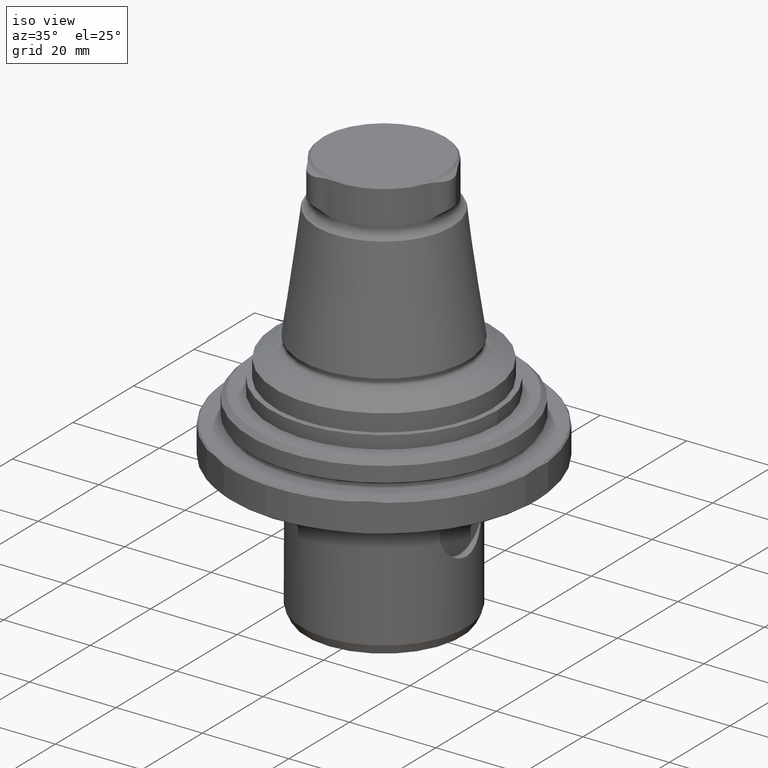
[diagram: clean part render]
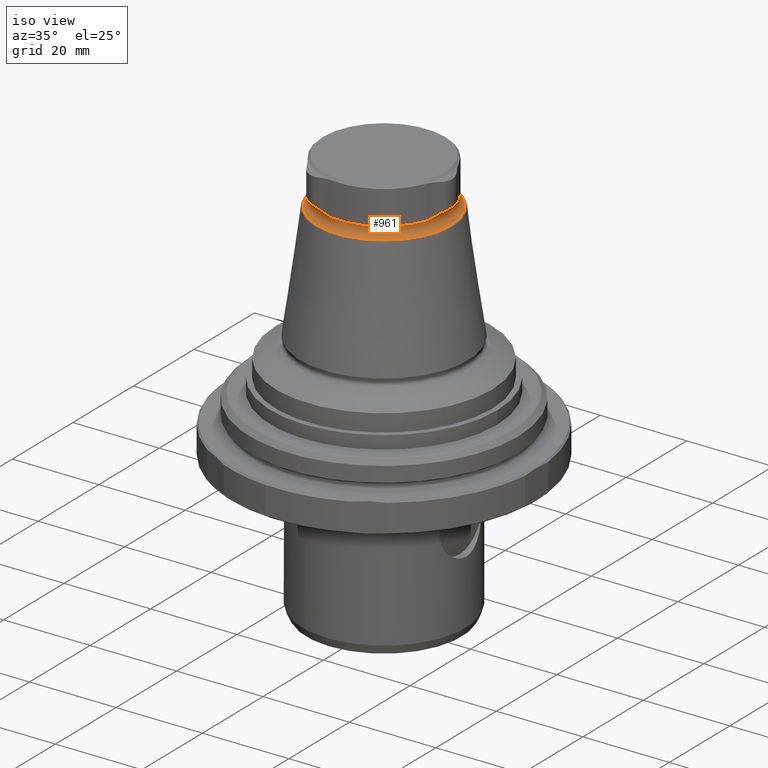
[diagram: same view with one face highlighted and labeled with its STEP entity id]
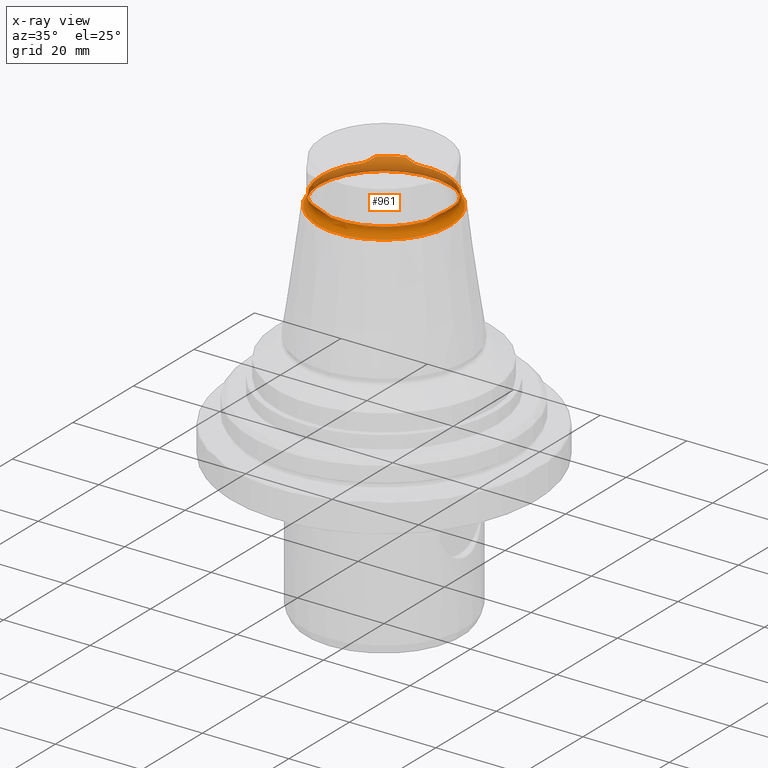
[diagram: x-ray of the same camera — body ghosted, the highlighted face saturated]
A machine part, iso view. The second image highlights one B-rep face of the part: STEP entity #961.
The next image is the same camera in x-ray: the body ghosted, the highlighted face saturated — about 38% of this face is hidden behind the body in this view.
In plain terms, the highlighted toroidal blend (fillet) surface has major radius 16.4 mm and minor (blend) radius 2 mm.
Its self-contained STEP definition (entity closure, byte-faithful):
#20=TOROIDAL_SURFACE('',#1062,16.4,2.);
#130=CIRCLE('',#1042,14.5);
#131=CIRCLE('',#1045,15.1144247806269);
#132=CIRCLE('',#1049,14.5);
#133=CIRCLE('',#1052,15.1144247806269);
#134=CIRCLE('',#1056,14.5);
#135=CIRCLE('',#1059,15.1144247806269);
#136=CIRCLE('',#1063,15.4);
#188=B_SPLINE_CURVE_WITH_KNOTS('',3,(#1566,#1567,#1568,#1569,#1570),
 .UNSPECIFIED.,.F.,.F.,(4,1,4),(2.3253959497874E-7,0.0015389400940897,0.00307764764858442),
 .UNSPECIFIED.);
#190=B_SPLINE_CURVE_WITH_KNOTS('',3,(#1584,#1585,#1586,#1587),
 .UNSPECIFIED.,.F.,.F.,(4,4),(0.00622155540779305,0.00622754949232766),
 .UNSPECIFIED.);
#191=B_SPLINE_CURVE_WITH_KNOTS('',3,(#1588,#1589,#1590,#1591),
 .UNSPECIFIED.,.F.,.F.,(4,4),(2.1221164720392E-7,6.21085284075806E-6),
 .UNSPECIFIED.);
#192=B_SPLINE_CURVE_WITH_KNOTS('',3,(#1595,#1596,#1597,#1598,#1599),
 .UNSPECIFIED.,.F.,.F.,(4,1,4),(1.98303930943962E-7,0.00153324672622609,
0.00306629514852124),.UNSPECIFIED.);
#193=B_SPLINE_CURVE_WITH_KNOTS('',3,(#1607,#1608,#1609,#1610,#1611),
 .UNSPECIFIED.,.F.,.F.,(4,1,4),(2.57032852111142E-7,0.00153896376344887,
0.00307767049404562),.UNSPECIFIED.);
#195=B_SPLINE_CURVE_WITH_KNOTS('',3,(#1625,#1626,#1627,#1628),
 .UNSPECIFIED.,.F.,.F.,(4,4),(6.19763373146291E-7,6.61840456632411E-6),
 .UNSPECIFIED.);
#196=B_SPLINE_CURVE_WITH_KNOTS('',3,(#1629,#1630,#1631,#1632),
 .UNSPECIFIED.,.F.,.F.,(4,4),(2.57948989344727E-7,6.25659018116285E-6),
 .UNSPECIFIED.);
#197=B_SPLINE_CURVE_WITH_KNOTS('',3,(#1636,#1637,#1638,#1639,#1640),
 .UNSPECIFIED.,.F.,.F.,(4,1,4),(2.11842187331082E-7,0.0015332601506275,
0.00306630845906767),.UNSPECIFIED.);
#198=B_SPLINE_CURVE_WITH_KNOTS('',3,(#1648,#1649,#1650,#1651,#1652),
 .UNSPECIFIED.,.F.,.F.,(4,1,4),(2.11460452280959E-7,0.00153891768004006,
0.00307762389962784),.UNSPECIFIED.);
#200=B_SPLINE_CURVE_WITH_KNOTS('',3,(#1666,#1667,#1668,#1669),
 .UNSPECIFIED.,.F.,.F.,(4,4),(0.00622861034463852,0.00623459694737962),
 .UNSPECIFIED.);
#201=B_SPLINE_CURVE_WITH_KNOTS('',3,(#1670,#1671,#1672,#1673),
 .UNSPECIFIED.,.F.,.F.,(4,4),(2.33364163493583E-7,6.23200535773929E-6),
 .UNSPECIFIED.);
#202=B_SPLINE_CURVE_WITH_KNOTS('',3,(#1675,#1676,#1677,#1678,#1679),
 .UNSPECIFIED.,.F.,.F.,(4,1,4),(2.49139269261998E-7,0.00153329683370227,
0.00306634452813528),.UNSPECIFIED.);
#315=ORIENTED_EDGE('',*,*,#547,.F.);
#316=ORIENTED_EDGE('',*,*,#546,.T.);
#317=ORIENTED_EDGE('',*,*,#545,.T.);
#318=ORIENTED_EDGE('',*,*,#541,.T.);
#319=ORIENTED_EDGE('',*,*,#544,.T.);
#320=ORIENTED_EDGE('',*,*,#540,.T.);
#321=ORIENTED_EDGE('',*,*,#538,.T.);
#322=ORIENTED_EDGE('',*,*,#536,.T.);
#323=ORIENTED_EDGE('',*,*,#534,.T.);
#324=ORIENTED_EDGE('',*,*,#530,.T.);
#325=ORIENTED_EDGE('',*,*,#533,.T.);
#326=ORIENTED_EDGE('',*,*,#529,.T.);
#327=ORIENTED_EDGE('',*,*,#527,.T.);
#328=ORIENTED_EDGE('',*,*,#525,.T.);
#329=ORIENTED_EDGE('',*,*,#523,.T.);
#330=ORIENTED_EDGE('',*,*,#519,.T.);
#331=ORIENTED_EDGE('',*,*,#522,.T.);
#332=ORIENTED_EDGE('',*,*,#518,.T.);
#333=ORIENTED_EDGE('',*,*,#516,.T.);
#516=EDGE_CURVE('',#644,#645,#130,.T.);
#518=EDGE_CURVE('',#646,#644,#188,.T.);
#519=EDGE_CURVE('',#647,#648,#131,.T.);
#522=EDGE_CURVE('',#648,#646,#190,.T.);
#523=EDGE_CURVE('',#649,#647,#191,.T.);
#525=EDGE_CURVE('',#650,#649,#192,.T.);
#527=EDGE_CURVE('',#651,#650,#132,.T.);
#529=EDGE_CURVE('',#652,#651,#193,.T.);
#530=EDGE_CURVE('',#653,#654,#133,.T.);
#533=EDGE_CURVE('',#654,#652,#195,.T.);
#534=EDGE_CURVE('',#655,#653,#196,.T.);
#536=EDGE_CURVE('',#656,#655,#197,.T.);
#538=EDGE_CURVE('',#657,#656,#134,.T.);
#540=EDGE_CURVE('',#658,#657,#198,.T.);
#541=EDGE_CURVE('',#659,#660,#135,.T.);
#544=EDGE_CURVE('',#660,#658,#200,.T.);
#545=EDGE_CURVE('',#661,#659,#201,.T.);
#546=EDGE_CURVE('',#645,#661,#202,.T.);
#547=EDGE_CURVE('',#662,#662,#136,.T.);
#644=VERTEX_POINT('',#1559);
#645=VERTEX_POINT('',#1561);
#646=VERTEX_POINT('',#1565);
#647=VERTEX_POINT('',#1573);
#648=VERTEX_POINT('',#1574);
#649=VERTEX_POINT('',#1583);
#650=VERTEX_POINT('',#1594);
#651=VERTEX_POINT('',#1602);
#652=VERTEX_POINT('',#1606);
#653=VERTEX_POINT('',#1614);
#654=VERTEX_POINT('',#1615);
#655=VERTEX_POINT('',#1624);
#656=VERTEX_POINT('',#1635);
#657=VERTEX_POINT('',#1643);
#658=VERTEX_POINT('',#1647);
#659=VERTEX_POINT('',#1655);
#660=VERTEX_POINT('',#1656);
#661=VERTEX_POINT('',#1665);
#662=VERTEX_POINT('',#1682);
#746=EDGE_LOOP('',(#315));
#747=EDGE_LOOP('',(#316,#317,#318,#319,#320,#321,#322,#323,#324,#325,#326,
#327,#328,#329,#330,#331,#332,#333));
#842=FACE_BOUND('',#746,.T.);
#843=FACE_BOUND('',#747,.T.);
#961=ADVANCED_FACE('',(#842,#843),#20,.F.);
#1042=AXIS2_PLACEMENT_3D('',#1562,#1199,#1200);
#1045=AXIS2_PLACEMENT_3D('',#1572,#1206,#1207);
#1049=AXIS2_PLACEMENT_3D('',#1603,#1217,#1218);
#1052=AXIS2_PLACEMENT_3D('',#1613,#1224,#1225);
#1056=AXIS2_PLACEMENT_3D('',#1644,#1235,#1236);
#1059=AXIS2_PLACEMENT_3D('',#1654,#1242,#1243);
#1062=AXIS2_PLACEMENT_3D('',#1680,#1249,#1250);
#1063=AXIS2_PLACEMENT_3D('',#1681,#1251,#1252);
#1199=DIRECTION('',(-4.38328612912168E-16,-8.51929322185263E-24,-1.));
#1200=DIRECTION('',(-1.,9.77164313006873E-16,4.38328610599545E-16));
#1206=DIRECTION('',(-4.38328612912168E-16,-8.51929322185263E-24,-1.));
#1207=DIRECTION('',(-1.,9.77164313006873E-16,4.38328610599545E-16));
#1217=DIRECTION('',(-4.38328612912168E-16,-8.51929322185263E-24,-1.));
#1218=DIRECTION('',(-1.,9.77164313006873E-16,4.38328610599545E-16));
#1224=DIRECTION('',(-4.38328612912168E-16,-8.51929322185263E-24,-1.));
#1225=DIRECTION('',(-1.,9.77164313006873E-16,4.38328610599545E-16));
#1235=DIRECTION('',(-4.38328612912168E-16,-8.51929322185263E-24,-1.));
#1236=DIRECTION('',(-1.,9.77164313006873E-16,4.38328610599545E-16));
#1242=DIRECTION('',(-4.38328612912168E-16,-8.51929322185263E-24,-1.));
#1243=DIRECTION('',(-1.,9.77164313006873E-16,4.38328610599545E-16));
#1249=DIRECTION('',(-4.38328612912168E-16,-8.51929322185263E-24,-1.));
#1250=DIRECTION('',(-1.,9.77164313006873E-16,4.38328610599545E-16));
#1251=DIRECTION('',(-4.38328612912168E-16,-8.51929322185263E-24,-1.));
#1252=DIRECTION('',(-1.,9.77164313006873E-16,4.38328610599545E-16));
#1559=CARTESIAN_POINT('',(-11.4297801108245,-8.92245070696412,46.6780044888597));
#1561=CARTESIAN_POINT('',(-11.4297801108242,8.92245070696371,46.6780044888626));
#1562=CARTESIAN_POINT('',(-6.82790461535123E-14,-9.81645347706665E-14,46.6780044888626));
#1565=CARTESIAN_POINT('',(-9.89976921547157,-11.4179951797517,47.5836531554482));
#1566=CARTESIAN_POINT('',(-9.89976921547149,-11.4179951797516,47.5836531554482));
#1567=CARTESIAN_POINT('',(-10.1059201587806,-10.976867121887,47.4167929741393));
#1568=CARTESIAN_POINT('',(-10.554358847367,-10.1424507187893,47.0361424330323));
#1569=CARTESIAN_POINT('',(-11.1105799262753,-9.3313504633795,46.678004488855));
#1570=CARTESIAN_POINT('',(-11.4297801108226,-8.92245070696355,46.6780044888548));
#1572=CARTESIAN_POINT('',(-6.69052635934294E-14,-9.81645347629345E-14,47.5855935752607));
#1573=CARTESIAN_POINT('',(-4.9440444993606,-14.2829359880094,47.5855935752607));
#1574=CARTESIAN_POINT('',(-9.89736315656183,-11.4231361278926,47.5855935752607));
#1583=CARTESIAN_POINT('',(-4.93838927821661,-14.2824492220778,47.5836531554483));
#1584=CARTESIAN_POINT('',(-9.89736315656183,-11.4231361278926,47.5855935752607));
#1585=CARTESIAN_POINT('',(-9.89816627519147,-11.4214226642802,47.5849482311036));
#1586=CARTESIAN_POINT('',(-9.8989684047252,-11.4197087789407,47.5843013379119));
#1587=CARTESIAN_POINT('',(-9.89976921547157,-11.4179951797517,47.5836531554482));
#1588=CARTESIAN_POINT('',(-4.93838927821662,-14.2824492220778,47.5836531554483));
#1589=CARTESIAN_POINT('',(-4.94027378220326,-14.2826125059966,47.5843013648048));
#1590=CARTESIAN_POINT('',(-4.94215885657609,-14.2827747619097,47.5849481693393));
#1591=CARTESIAN_POINT('',(-4.94404449936061,-14.2829359880094,47.5855935752607));
#1594=CARTESIAN_POINT('',(-2.01217892083198,-14.3597052891257,46.6780044888626));
#1595=CARTESIAN_POINT('',(-2.01217892083233,-14.3597052891257,46.6780044888607));
#1596=CARTESIAN_POINT('',(-2.52756176568162,-14.2874863629232,46.6780044888607));
#1597=CARTESIAN_POINT('',(-3.50119874426205,-14.2118277609701,47.0344657481654));
#1598=CARTESIAN_POINT('',(-4.45266532455197,-14.2403633940976,47.4165795840098));
#1599=CARTESIAN_POINT('',(-4.9383892782166,-14.2824492220778,47.5836531554484));
#1602=CARTESIAN_POINT('',(13.4419590316585,-5.43725458216212,46.6780044888644));
#1603=CARTESIAN_POINT('',(-6.82790461535123E-14,-9.81645347706665E-14,46.6780044888626));
#1606=CARTESIAN_POINT('',(14.83815849369,-2.86445404232654,47.5836531554491));
#1607=CARTESIAN_POINT('',(14.8381584936899,-2.86445404232656,47.5836531554494));
#1608=CARTESIAN_POINT('',(14.5592060014918,-3.2635498240514,47.4167930582311));
#1609=CARTESIAN_POINT('',(14.0607998071633,-4.069116877366,47.0361429196281));
#1610=CARTESIAN_POINT('',(13.636476906111,-4.95636827091454,46.6780044888612));
#1611=CARTESIAN_POINT('',(13.4419590316577,-5.43725458216131,46.678004488861));
#1613=CARTESIAN_POINT('',(-6.69052635934294E-14,-9.81645347629345E-14,47.5855935752607));
#1614=CARTESIAN_POINT('',(14.8414076559226,2.85979986012096,47.5855935752607));
#1615=CARTESIAN_POINT('',(14.8414076559229,-2.85979986011986,47.5855935752607));
#1624=CARTESIAN_POINT('',(14.8381584936904,2.86445404232663,47.5836531554497));
#1625=CARTESIAN_POINT('',(14.8414076559229,-2.85979986011986,47.5855935752607));
#1626=CARTESIAN_POINT('',(14.8403252086261,-2.86135226163301,47.5849481693355));
#1627=CARTESIAN_POINT('',(14.8392421536976,-2.86290365597065,47.5843013648013));
#1628=CARTESIAN_POINT('',(14.83815849369,-2.86445404232658,47.5836531554492));
#1629=CARTESIAN_POINT('',(14.8381584936904,2.86445404232663,47.5836531554497));
#1630=CARTESIAN_POINT('',(14.8392421536978,2.86290365597105,47.5843013648016));
#1631=CARTESIAN_POINT('',(14.8403252086261,2.86135226163376,47.5849481693357));
#1632=CARTESIAN_POINT('',(14.8414076559226,2.85979986012096,47.5855935752607));
#1635=CARTESIAN_POINT('',(13.4419590316582,5.43725458216255,46.6780044888655));
#1636=CARTESIAN_POINT('',(13.4419590316582,5.43725458216254,46.6780044888655));
#1637=CARTESIAN_POINT('',(13.6371068531405,4.95481091838994,46.6780044888655));
#1638=CARTESIAN_POINT('',(14.0584032982657,4.07378667125613,47.034465720431));
#1639=CARTESIAN_POINT('',(14.5588491375802,3.26406038726901,47.4165795941159));
#1640=CARTESIAN_POINT('',(14.8381584936904,2.8644540423266,47.5836531554497));
#1643=CARTESIAN_POINT('',(-2.01217892083196,14.3597052891265,46.6780044888637));
#1644=CARTESIAN_POINT('',(-6.82790461535123E-14,-9.81645347706665E-14,46.6780044888626));
#1647=CARTESIAN_POINT('',(-4.9383892782157,14.2824492220786,47.5836531554488));
#1648=CARTESIAN_POINT('',(-4.93838927821567,14.2824492220785,47.5836531554489));
#1649=CARTESIAN_POINT('',(-4.45328599971568,14.2404171728506,47.4167930765007));
#1650=CARTESIAN_POINT('',(-3.50644175510599,14.2115682769748,47.0361431562619));
#1651=CARTESIAN_POINT('',(-2.52589799078184,14.2877195023031,46.6780044888607));
#1652=CARTESIAN_POINT('',(-2.01217892083231,14.3597052891259,46.6780044888607));
#1654=CARTESIAN_POINT('',(-6.69052635934294E-14,-9.81645347629345E-14,47.5855935752607));
#1655=CARTESIAN_POINT('',(-9.89736315656259,11.4231361278918,47.5855935752607));
#1656=CARTESIAN_POINT('',(-4.94404449935833,14.28293598801,47.5855935752607));
#1665=CARTESIAN_POINT('',(-9.89976921547194,11.4179951797517,47.5836531554485));
#1666=CARTESIAN_POINT('',(-4.94404449935832,14.28293598801,47.5855935752607));
#1667=CARTESIAN_POINT('',(-4.94215863661782,14.2827747431036,47.5849480940542));
#1668=CARTESIAN_POINT('',(-4.9402735622284,14.2826124869376,47.5843012891413));
#1669=CARTESIAN_POINT('',(-4.9383892782157,14.2824492220786,47.5836531554488));
#1670=CARTESIAN_POINT('',(-9.89976921547194,11.4179951797517,47.5836531554485));
#1671=CARTESIAN_POINT('',(-9.89896837150276,11.4197088500318,47.584301364803));
#1672=CARTESIAN_POINT('',(-9.89816635205902,11.4214225002831,47.5849481693375));
#1673=CARTESIAN_POINT('',(-9.89736315656259,11.4231361278918,47.5855935752607));
#1675=CARTESIAN_POINT('',(-11.4297801108241,8.92245070696387,46.6780044888616));
#1676=CARTESIAN_POINT('',(-11.1095464122082,9.33267440888899,46.6780044888616));
#1677=CARTESIAN_POINT('',(-10.5572042888355,10.1380410971447,47.0344654896771));
#1678=CARTESIAN_POINT('',(-10.1061838530727,10.9763028608224,47.4165795379235));
#1679=CARTESIAN_POINT('',(-9.89976921547192,11.4179951797516,47.5836531554486));
#1680=CARTESIAN_POINT('',(-6.855278228454E-14,-9.81645347759868E-14,46.0535046890228));
#1681=CARTESIAN_POINT('',(-6.83360294177673E-14,-9.81645347907426E-14,44.3214538814539));
#1682=CARTESIAN_POINT('',(-15.4000000000001,-8.31162043704368E-14,44.3214538814539));